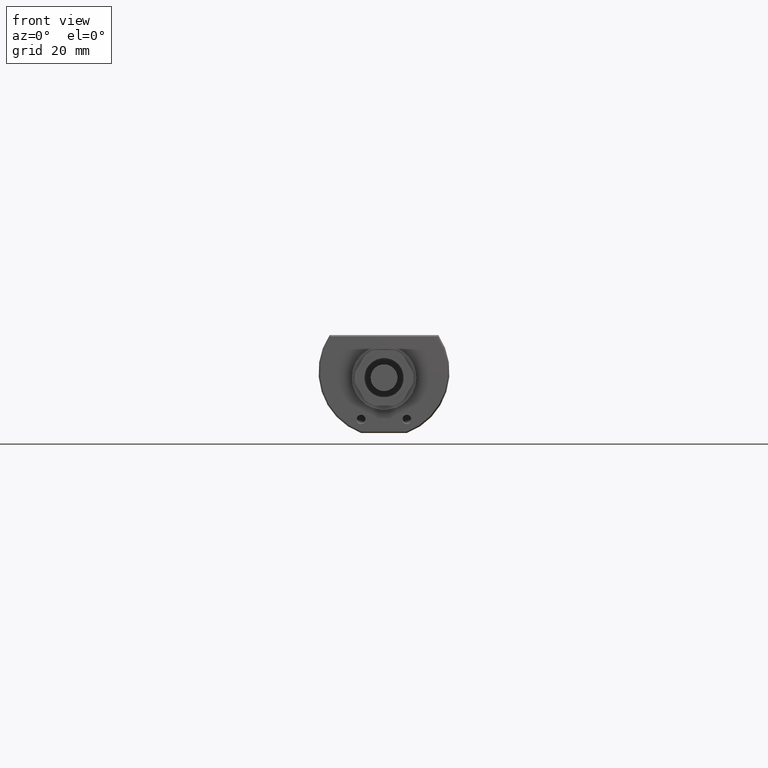
[diagram: clean part render]
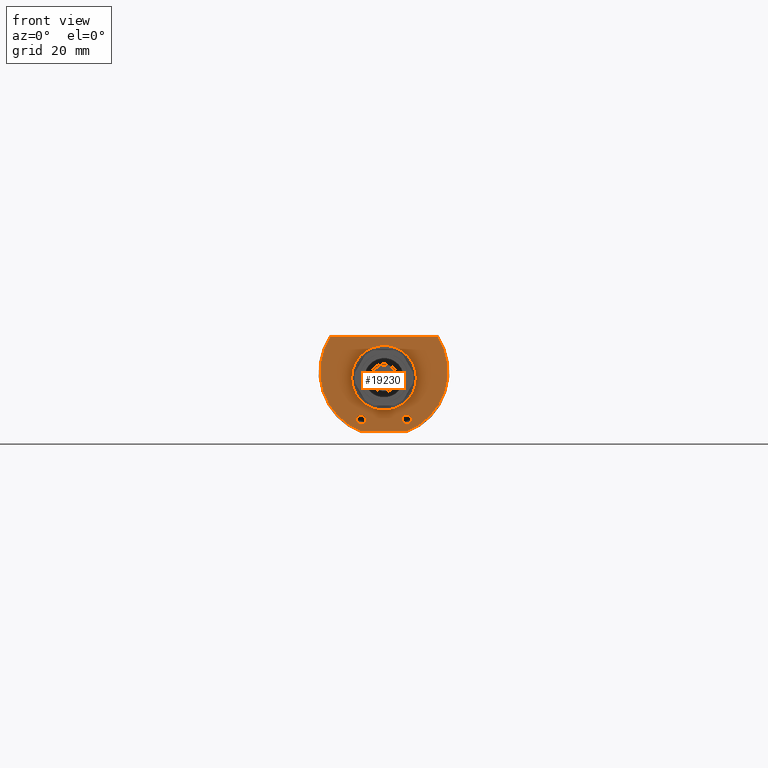
[diagram: same view with one face highlighted and labeled with its STEP entity id]
A machine part, front view. The second image highlights one B-rep face of the part: STEP entity #19230.
In plain terms, the highlighted planar face has unit normal (0, -1, 0).
Its self-contained STEP definition (entity closure, byte-faithful):
#17470=CARTESIAN_POINT('',(-16.3345515631189,10.7600894754653,93.));
#17480=VERTEX_POINT('',#17470);
#17510=CARTESIAN_POINT('',(1.87548269413135E-13,-2.22369216630175E-15,
93.0000000000005));
#17520=DIRECTION('',(-1.37384890593759E-14,2.33252530908452E-15,1.));
#17530=DIRECTION('',(-1.,0.,-1.37384890593759E-14));
#17540=AXIS2_PLACEMENT_3D('',#17510,#17520,#17530);
#17550=CIRCLE('',#17540,19.5600894754654);
#17560=CARTESIAN_POINT('',(-6.88024154290118,-18.3100894754653,93.));
#17570=VERTEX_POINT('',#17560);
#17580=EDGE_CURVE('',#17480,#17570,#17550,.T.);
#17880=CARTESIAN_POINT('',(16.3345515631189,10.7600894754653,93.));
#17890=VERTEX_POINT('',#17880);
#17920=CARTESIAN_POINT('',(0.,10.7600894754653,93.));
#17930=DIRECTION('',(1.,0.,0.));
#17940=VECTOR('',#17930,1.);
#17950=LINE('',#17920,#17940);
#17960=EDGE_CURVE('',#17480,#17890,#17950,.T.);
#18200=CARTESIAN_POINT('',(6.88024154290118,-18.3100894754653,93.));
#18210=VERTEX_POINT('',#18200);
#18240=CARTESIAN_POINT('',(-1.91273851226735E-14,-8.39879687330563E-14,
92.9999999999997));
#18250=DIRECTION('',(2.46993356956785E-15,7.63005727629543E-15,1.));
#18260=DIRECTION('',(0.,-1.,7.63005727629543E-15));
#18270=AXIS2_PLACEMENT_3D('',#18240,#18250,#18260);
#18280=CIRCLE('',#18270,19.5600894754653);
#18290=EDGE_CURVE('',#18210,#17890,#18280,.T.);
#18490=CARTESIAN_POINT('',(0.,-18.3100894754653,93.));
#18500=DIRECTION('',(-1.,0.,0.));
#18510=VECTOR('',#18500,1.);
#18520=LINE('',#18490,#18510);
#18530=EDGE_CURVE('',#18210,#17570,#18520,.T.);
#18670=CARTESIAN_POINT('',(-35.7703448023115,-21.2171073705584,93.));
#18680=DIRECTION('',(0.,0.,1.));
#18690=DIRECTION('',(1.,0.,0.));
#18700=AXIS2_PLACEMENT_3D('',#18670,#18680,#18690);
#18710=PLANE('',#18700);
#18720=ORIENTED_EDGE('',*,*,#17960,.F.);
#18730=ORIENTED_EDGE('',*,*,#18290,.T.);
#18740=ORIENTED_EDGE('',*,*,#18530,.F.);
#18750=ORIENTED_EDGE('',*,*,#17580,.T.);
#18760=EDGE_LOOP('',(#18750,#18740,#18730,#18720));
#18770=FACE_OUTER_BOUND('',#18760,.T.);
#18780=CARTESIAN_POINT('',(2.94902990916057E-15,-1.9,93.));
#18790=DIRECTION('',(0.,0.,-1.));
#18800=DIRECTION('',(1.,0.,0.));
#18810=AXIS2_PLACEMENT_3D('',#18780,#18790,#18800);
#18820=CIRCLE('',#18810,9.875);
#18830=CARTESIAN_POINT('',(-9.875,-1.9,93.));
#18840=VERTEX_POINT('',#18830);
#18850=CARTESIAN_POINT('',(9.875,-1.9,93.));
#18860=VERTEX_POINT('',#18850);
#18870=EDGE_CURVE('',#18840,#18860,#18820,.T.);
#18880=ORIENTED_EDGE('',*,*,#18870,.T.);
#18890=EDGE_CURVE('',#18860,#18840,#18820,.T.);
#18900=ORIENTED_EDGE('',*,*,#18890,.T.);
#18910=EDGE_LOOP('',(#18900,#18880));
#18920=FACE_BOUND('',#18910,.T.);
#18930=CARTESIAN_POINT('',(6.99999999999979,-14.6000894754653,
93.0000000000005));
#18940=DIRECTION('',(-1.18947984209006E-14,6.17911606280552E-16,1.));
#18950=DIRECTION('',(1.,0.,1.18947984209006E-14));
#18960=AXIS2_PLACEMENT_3D('',#18930,#18940,#18950);
#18970=CIRCLE('',#18960,1.40000000000003);
#18980=CARTESIAN_POINT('',(5.59999999999976,-14.6000894754653,
93.0000000000005));
#18990=VERTEX_POINT('',#18980);
#19000=CARTESIAN_POINT('',(8.39999999999982,-14.6000894754653,
93.0000000000005));
#19010=VERTEX_POINT('',#19000);
#19020=EDGE_CURVE('',#18990,#19010,#18970,.T.);
#19030=ORIENTED_EDGE('',*,*,#19020,.F.);
#19040=EDGE_CURVE('',#19010,#18990,#18970,.T.);
#19050=ORIENTED_EDGE('',*,*,#19040,.F.);
#19060=EDGE_LOOP('',(#19050,#19030));
#19070=FACE_BOUND('',#19060,.T.);
#19080=CARTESIAN_POINT('',(-7.00000000000003,-14.6000894754647,
92.9999999999998));
#19090=DIRECTION('',(-1.85373481884225E-15,3.57064635343662E-14,1.));
#19100=DIRECTION('',(0.,1.,-3.57064635343662E-14));
#19110=AXIS2_PLACEMENT_3D('',#19080,#19090,#19100);
#19120=CIRCLE('',#19110,1.40000000000014);
#19130=CARTESIAN_POINT('',(-7.00000000000003,-13.2000894754645,
92.9999999999998));
#19140=VERTEX_POINT('',#19130);
#19150=CARTESIAN_POINT('',(-7.00000000000003,-16.0000894754648,
92.9999999999999));
#19160=VERTEX_POINT('',#19150);
#19170=EDGE_CURVE('',#19140,#19160,#19120,.T.);
#19180=ORIENTED_EDGE('',*,*,#19170,.F.);
#19190=EDGE_CURVE('',#19160,#19140,#19120,.T.);
#19200=ORIENTED_EDGE('',*,*,#19190,.F.);
#19210=EDGE_LOOP('',(#19200,#19180));
#19220=FACE_BOUND('',#19210,.T.);
#19230=ADVANCED_FACE('',(#18770,#18920,#19070,#19220),#18710,.T.);